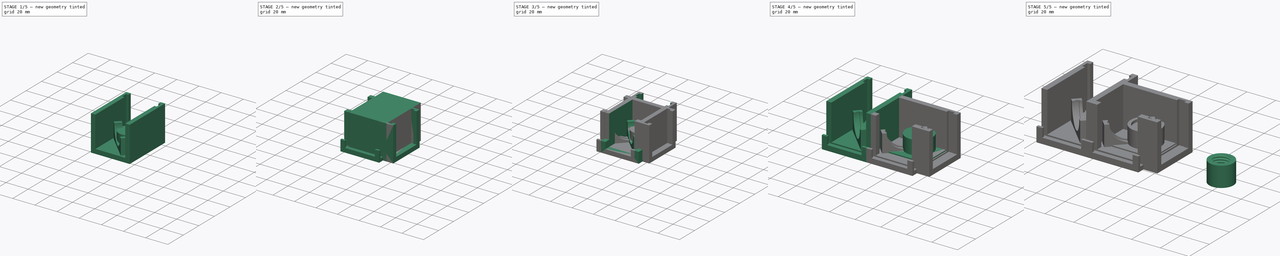
[diagram: build sequence overview — one tinted view per stage of 5, left to right]
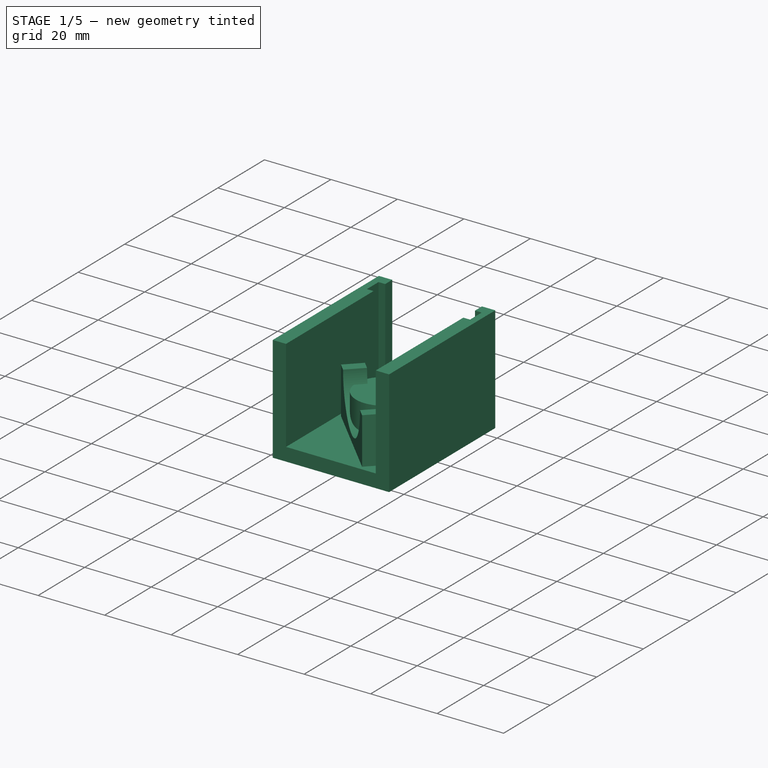
[diagram: stage 1 of 5 — iso view after this stage's code; geometry added in this stage tinted green]
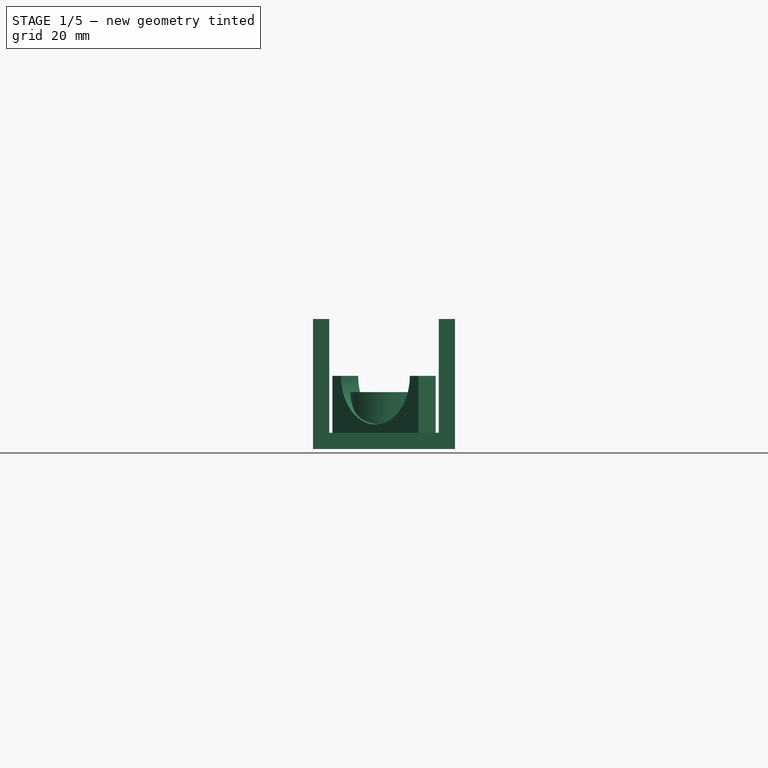
[diagram: stage 1 of 5 — front view after this stage's code; geometry added in this stage tinted green]
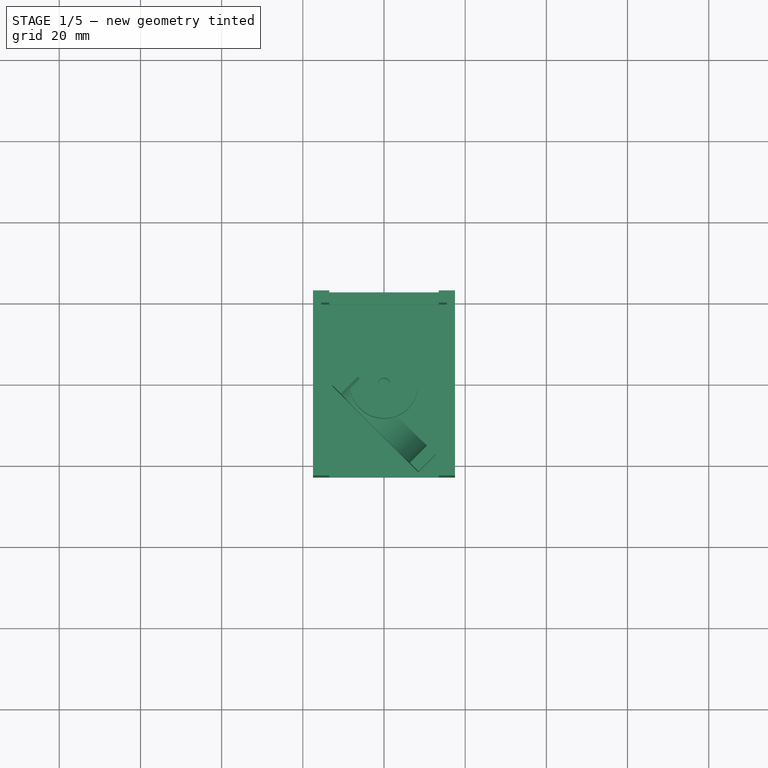
[diagram: stage 1 of 5 — top view after this stage's code; geometry added in this stage tinted green]
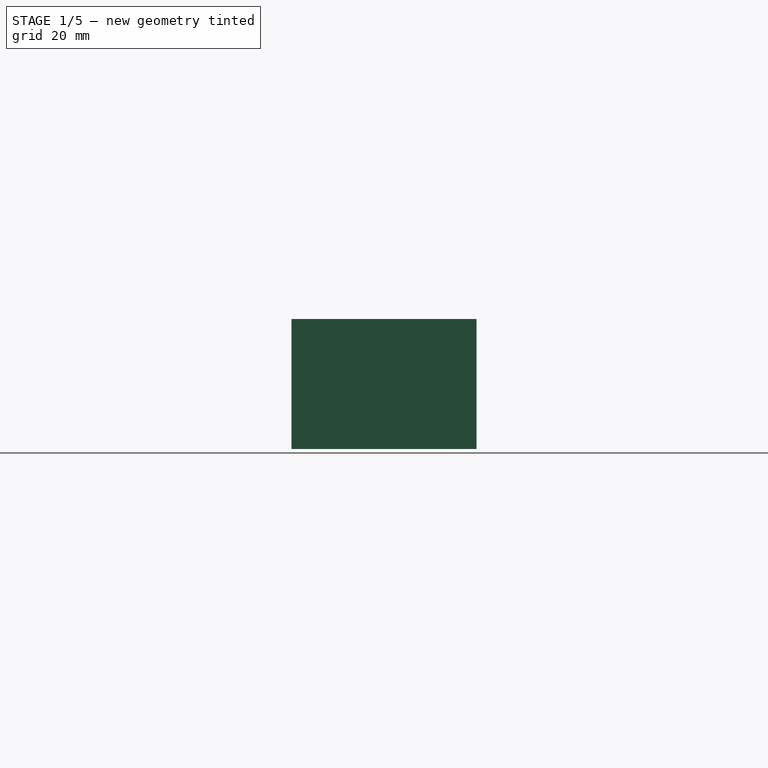
[diagram: stage 1 of 5 — right view after this stage's code; geometry added in this stage tinted green]
FCSTD DOCUMENT  (FreeCAD 0.20R29177 (Git))
Label: SunlightCollector+Dichroic01
License: All rights reserved
LicenseURL: http://en.wikipedia.org/wiki/All_rights_reserved
objects: Sketcher::SketchObject×21, PartDesign::Pocket×11, PartDesign::Pad×10, PartDesign::Body×5, Part::Cut×3, Part::Cylinder×2, Part::FeaturePython×1, PartDesign::Fillet×1, Part::MultiFuse×1
note: 77 computed .brp shape members not serialized (recipe doc carries the construction recipe); baked Part::Feature solids carry a one-line shape summary decoded from their .brp

FEATURE [Sketcher::SketchObject] Sketch022  label="BaseMain003"
  FullyConstrained = true
  MapMode = 5
  Support = -> [XY_Plane007]
  sketch-geometry (4):
    g0: LineSegment StartX=-17.5 StartY=22.8 StartZ=0 EndX=17.5 EndY=22.8 EndZ=0
    g1: LineSegment StartX=17.5 StartY=22.8 StartZ=0 EndX=17.5 EndY=-22.8 EndZ=0
    g2: LineSegment StartX=17.5 StartY=-22.8 StartZ=0 EndX=-17.5 EndY=-22.8 EndZ=0
    g3: LineSegment StartX=-17.5 StartY=-22.8 StartZ=0 EndX=-17.5 EndY=22.8 EndZ=0
  constraints (11):
    c: Coincident(g0,g1)
    c: Coincident(g1,g2)
    c: Coincident(g2,g3)
    c: Coincident(g3,g0)
    c: Horizontal(g0)
    c: Horizontal(g2)
    c: Vertical(g1)
    c: Vertical(g3)
    c: Symmetric(g0,g1,g-1)
    c: DistanceY(g3,g3) = 45.6
    c: DistanceX(g2,g2) = 35
FEATURE [PartDesign::Pad] Pad010  label="BaseMain002"
  Direction = (0,0,1)
  Length = 32
  Length2 = 100
  Profile = -> Sketch022
  Type = 0
FEATURE [Sketcher::SketchObject] Sketch023  label="BaseMainHole003"
  FullyConstrained = true
  MapMode = 5
  Placement = pos=(0,0,32) rot=(0,0,1;0rad)
  Support = -> [Pad010]
  sketch-geometry (4):
    g0: LineSegment StartX=-13.5 StartY=25 StartZ=0 EndX=13.5 EndY=25 EndZ=0
    g1: LineSegment StartX=13.5 StartY=25 StartZ=0 EndX=13.5 EndY=-25 EndZ=0
    g2: LineSegment StartX=13.5 StartY=-25 StartZ=0 EndX=-13.5 EndY=-25 EndZ=0
    g3: LineSegment StartX=-13.5 StartY=-25 StartZ=0 EndX=-13.5 EndY=25 EndZ=0
  constraints (11):
    c: Coincident(g0,g1)
    c: Coincident(g1,g2)
    c: Coincident(g2,g3)
    c: Coincident(g3,g0)
    c: Horizontal(g0)
    c: Horizontal(g2)
    c: Vertical(g1)
    c: Vertical(g3)
    c: Symmetric(g0,g1,g-1)
    c: DistanceX(g2,g2) = 27
    c: DistanceY(g1,g1) = 50
FEATURE [PartDesign::Pocket] Pocket008  label="BaseMainHole002"
  BaseFeature = -> Pad010
  Direction = (0,0,-1)
  Length = 28
  Length2 = 100
  Profile = -> Sketch023
  Type = 0
FEATURE [Sketcher::SketchObject] Sketch024  label="BaseSmallHoles003"
  ExternalGeometry = -> [Pocket008]
  FullyConstrained = true
  MapMode = 5
  Placement = pos=(0,0,32) rot=(0,0,1;0rad)
  Support = -> [Pocket008]
  sketch-geometry (4):
    g0: LineSegment StartX=-15.5 StartY=19.8 StartZ=0 EndX=15.5 EndY=19.8 EndZ=0
    g1: LineSegment StartX=15.5 StartY=19.8 StartZ=0 EndX=15.5 EndY=14.8 EndZ=0
    g2: LineSegment StartX=15.5 StartY=14.8 StartZ=0 EndX=-15.5 EndY=14.8 EndZ=0
    g3: LineSegment StartX=-15.5 StartY=14.8 StartZ=0 EndX=-15.5 EndY=19.8 EndZ=0
  constraints (12):
    c: Coincident(g0,g1)
    c: Coincident(g1,g2)
    c: Coincident(g2,g3)
    c: Coincident(g3,g0)
    c: Horizontal(g0)
    c: Horizontal(g2)
    c: Vertical(g1)
    c: Vertical(g3)
    c: DistanceX(g0,g0) = 31
    c: DistanceX(g-1,g1) = 15.5
    c: DistanceY(g3,g3) = 5
    c: DistanceY(g0,g-3) = 3
FEATURE [PartDesign::Pocket] Pocket009  label="BaseSmallHoles002"
  BaseFeature = -> Pocket008
  Direction = (0,0,-1)
  Length = 29
  Length2 = 100
  Profile = -> Sketch024
  Type = 0
FEATURE [Sketcher::SketchObject] Sketch021  label="DichroicHolder003"
  FullyConstrained = true
  MapMode = 5
  Placement = pos=(0,0,4) rot=(0,0,1;0rad)
  Support = -> [Pocket009]
  expr: Constraints[10] = 25.46 / 2
  sketch-geometry (4):
    g0: LineSegment StartX=-12.73 StartY=-0.312641 StartZ=0 EndX=8.4832 EndY=-21.5258 EndZ=0
    g1: LineSegment StartX=8.4832 StartY=-21.5258 StartZ=0 EndX=12.7258 EndY=-17.2832 EndZ=0
    g2: LineSegment StartX=12.7258 StartY=-17.2832 StartZ=0 EndX=-8.48736 EndY=3.93 EndZ=0
    g3: LineSegment StartX=-8.48736 StartY=3.93 StartZ=0 EndX=-12.73 EndY=-0.312641 EndZ=0
  constraints (12):
    c: Coincident(g0,g1)
    c: Coincident(g1,g2)
    c: Coincident(g2,g3)
    c: Coincident(g3,g0)
    c: Equal(g0,g2)
    c: Equal(g1,g3)
    c: Angle(g2) = 2.35619
    c: Distance(g1) = 6
    c: Distance(g0) = 30
    c: Angle(g1) = 0.785398
    c: DistanceX(g0,g-1) = 12.73
    c: DistanceY(g-1,g2) = 3.93
FEATURE [PartDesign::Pad] Pad009  label="DichroicHolder002"
  BaseFeature = -> Pocket009
  Direction = (0,0,1)
  Length = 14
  Length2 = 14
  Profile = -> Sketch021
  ReferenceAxis = -> Sketch021 [N_Axis]
  Type = 0
FEATURE [Sketcher::SketchObject] Sketch025  label="DichroicHole003"
  ExternalGeometry = -> [Pad009]
  FullyConstrained = true
  MapMode = 5
  Placement = pos=(-6.52132,-6.52132,0) rot=(0.862856,-0.357407,-0.357407;1.71777rad)
  Support = -> [Pad009]
  sketch-geometry (2):
    g0: ArcOfCircle CenterX=6.2196 CenterY=18 CenterZ=0 NormalX=0 NormalY=0 NormalZ=1 AngleXU=0 Radius=12 StartAngle=3.14159 EndAngle=6.28319
    g1: LineSegment StartX=-5.7804 StartY=18 StartZ=0 EndX=18.2196 EndY=18 EndZ=0
  constraints (7):
    c: PointOnObject(g0,g-3)
    c: PointOnObject(g0,g-3)
    c: PointOnObject(g0,g-3)
    c: DistanceX(g0,g-3) = 15
    c: Radius(g0) = 12
    c: Coincident(g1,g0)
    c: Coincident(g1,g0)
FEATURE [PartDesign::Pocket] Pocket007  label="DichroicHole002"
  BaseFeature = -> Pad009
  Direction = (0.707107,0.707107,0)
  Length = 5
  Length2 = 5
  Profile = -> Sketch025
  ReferenceAxis = -> Sketch025 [N_Axis]
  Type = 2
FEATURE [Sketcher::SketchObject] Sketch031
  FullyConstrained = true
  MapMode = 5
  Support = -> [XY_Plane]
  sketch-geometry (2):
    g0: Circle CenterX=0 CenterY=0 CenterZ=0 NormalX=0 NormalY=0 NormalZ=1 AngleXU=0 Radius=8.4
    g1: Circle CenterX=0 CenterY=0 CenterZ=0 NormalX=0 NormalY=0 NormalZ=1 AngleXU=0 Radius=1.55
  constraints (4):
    c: Coincident(g0,g-1)
    c: Radius(g0) = 8.4
    c: Coincident(g1,g0)
    c: Diameter(g1) = 3.1
FEATURE [PartDesign::Pad] Pad013
  Direction = (0,0,1)
  Length = 14
  Length2 = 10
  Profile = -> Sketch031
  ReferenceAxis = -> Sketch031 [N_Axis]
  Type = 0
FEATURE [PartDesign::Body] Body  label="FiberHolder"
  Group = -> [Sketch031,Pad013]
  Origin = -> Origin
  Placement = pos=(81,-11,0) rot=(0,0,1;0rad)
  Tip = -> Pad013
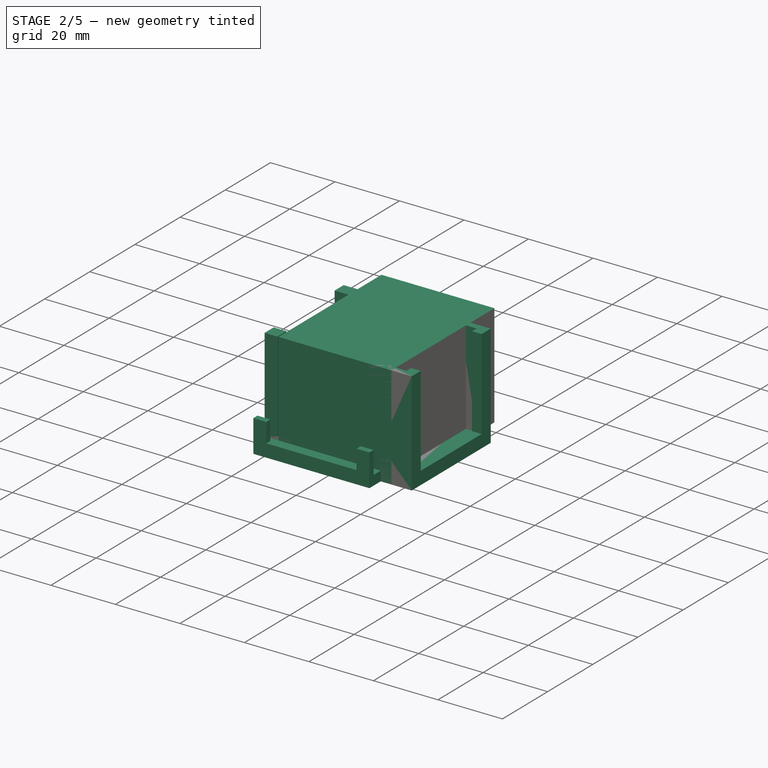
[diagram: stage 2 of 5 — iso view after this stage's code; geometry added in this stage tinted green]
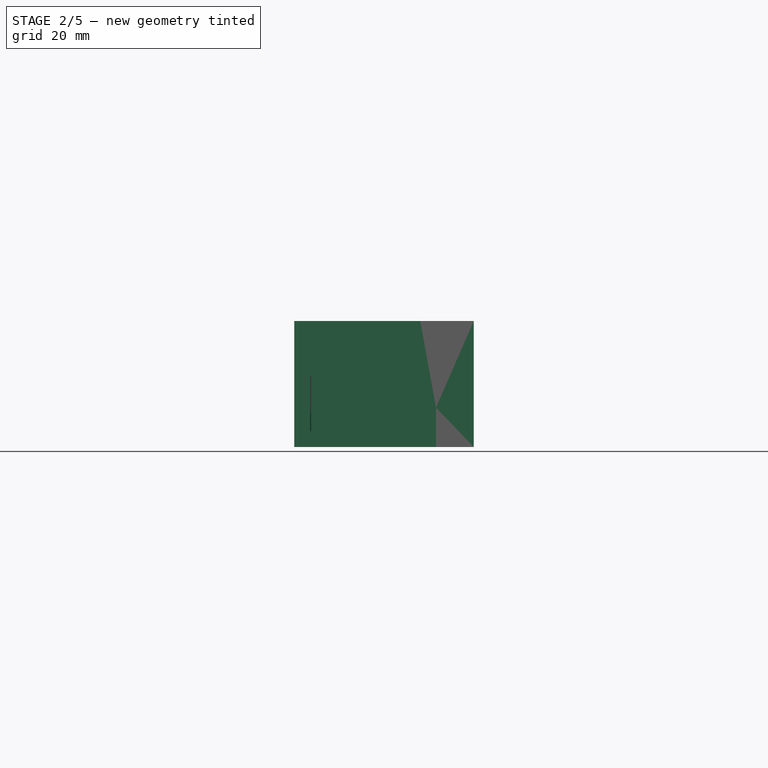
[diagram: stage 2 of 5 — front view after this stage's code; geometry added in this stage tinted green]
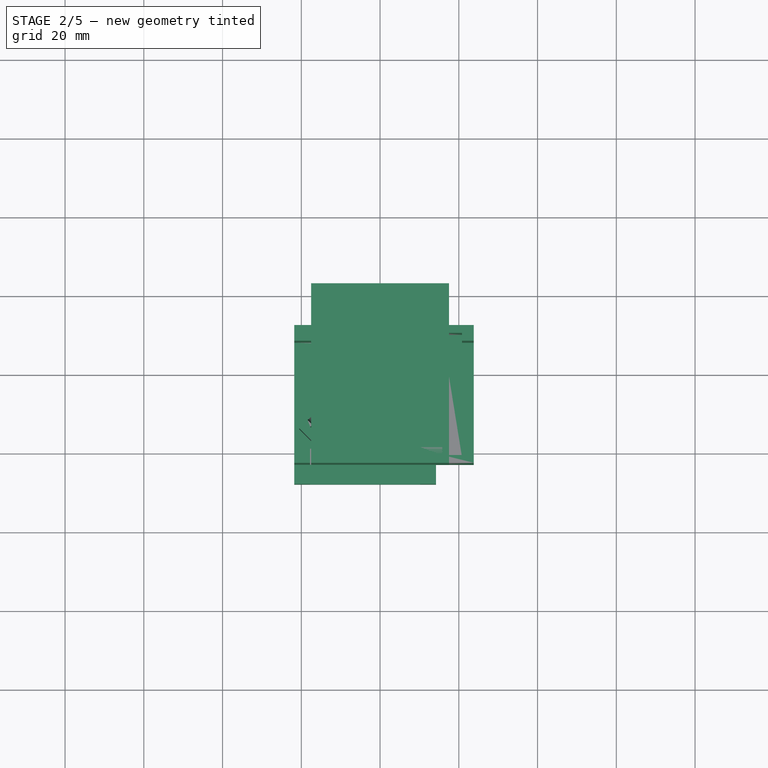
[diagram: stage 2 of 5 — top view after this stage's code; geometry added in this stage tinted green]
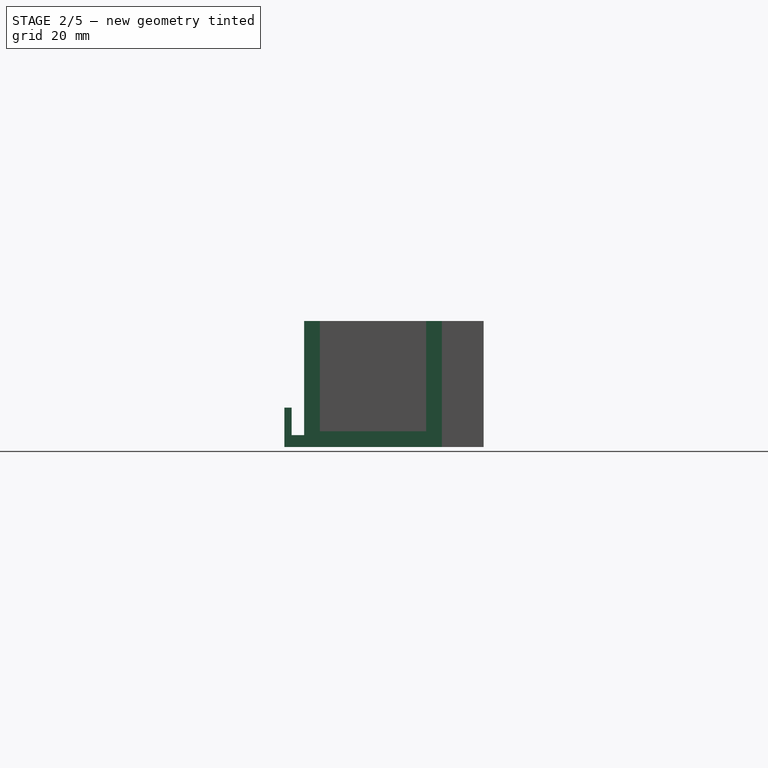
[diagram: stage 2 of 5 — right view after this stage's code; geometry added in this stage tinted green]
FEATURE [PartDesign::Body] Body003  label="FibreHolder"
  Group = -> [Sketch006,Pad003,Sketch007,Pad004,Sketch008,Pocket003,Sketch011,Pocket004,Fillet002]
  Origin = -> Origin003
  Placement = pos=(60,18,0) rot=(0,0,1;0rad)
  Tip = -> Fillet002
FEATURE [Sketcher::SketchObject] Sketch017  label="BaseMain001"
  FullyConstrained = true
  MapMode = 5
  Support = -> [XY_Plane006]
  sketch-geometry (4):
    g0: LineSegment StartX=-17.5 StartY=22.8 StartZ=0 EndX=17.5 EndY=22.8 EndZ=0
    g1: LineSegment StartX=17.5 StartY=22.8 StartZ=0 EndX=17.5 EndY=-22.8 EndZ=0
    g2: LineSegment StartX=17.5 StartY=-22.8 StartZ=0 EndX=-17.5 EndY=-22.8 EndZ=0
    g3: LineSegment StartX=-17.5 StartY=-22.8 StartZ=0 EndX=-17.5 EndY=22.8 EndZ=0
  constraints (11):
    c: Coincident(g0,g1)
    c: Coincident(g1,g2)
    c: Coincident(g2,g3)
    c: Coincident(g3,g0)
    c: Horizontal(g0)
    c: Horizontal(g2)
    c: Vertical(g1)
    c: Vertical(g3)
    c: Symmetric(g0,g1,g-1)
    c: DistanceY(g3,g3) = 45.6
    c: DistanceX(g2,g2) = 35
FEATURE [PartDesign::Pad] Pad008  label="BaseMain"
  Direction = (0,0,1)
  Length = 32
  Length2 = 100
  Profile = -> Sketch017
  Type = 0
FEATURE [Part::Cylinder] Cylinder001  label="DichroicFilter02"
  Angle = 360
  AttacherType = Attacher::AttachEngine3D
  FirstAngle = 0
  Height = 2.3
  Placement = pos=(-38.25,-74,18) rot=(0.860516,-0.360216,-0.360216;1.71775rad)
  Radius = 12.8
  SecondAngle = 0
FEATURE [PartDesign::Body] Body006  label="BaseTemp01"
  Group = -> [Sketch017,Pad008,Sketch018,Pocket005,Sketch019,Pocket006,Sketch,Pad,Sketch020,Pocket,Sketch026,Pad011,Sketch027,Pocket010]
  Origin = -> Origin006
  Placement = pos=(-39,0,0) rot=(0,0,1;0rad)
  Tip = -> Pocket010
FEATURE [Sketcher::SketchObject] Sketch028  label="LCIllumination001"
  ExternalGeometry = -> [Pocket007]
  FullyConstrained = true
  MapMode = 5
  Placement = pos=(0,0,32) rot=(0,0,1;0rad)
  Support = -> [Pocket007]
  sketch-geometry (4):
    g0: LineSegment StartX=17.5 StartY=-18.8 StartZ=0 EndX=13.5 EndY=-18.8 EndZ=0
    g1: LineSegment StartX=13.5 StartY=-18.8 StartZ=0 EndX=13.5 EndY=9.2 EndZ=0
    g2: LineSegment StartX=13.5 StartY=9.2 StartZ=0 EndX=17.5 EndY=9.2 EndZ=0
    g3: LineSegment StartX=17.5 StartY=9.2 StartZ=0 EndX=17.5 EndY=-18.8 EndZ=0
  constraints (12):
    c: Coincident(g0,g1)
    c: Coincident(g1,g2)
    c: Coincident(g2,g3)
    c: Coincident(g3,g0)
    c: Horizontal(g0)
    c: Horizontal(g2)
    c: Vertical(g1)
    c: Vertical(g3)
    c: PointOnObject(g0,g-3)
    c: DistanceX(g2,g2) = 4
    c: DistanceY(g1,g1) = 28
    c: DistanceY(g-3,g0) = 4
FEATURE [PartDesign::Pocket] Pocket011  label="LCIllumination"
  BaseFeature = -> Pocket007
  Direction = (0,0,-1)
  Length = 28
  Length2 = 5
  Profile = -> Sketch028
  ReferenceAxis = -> Sketch028 [N_Axis]
  Type = 0
FEATURE [Sketcher::SketchObject] Sketch029  label="LCExtension001"
  ExternalGeometry = -> [Pocket011]
  FullyConstrained = true
  MapMode = 5
  Placement = pos=(17.5,0,0) rot=(0.57735,0.57735,0.57735;2.0944rad)
  Support = -> [Pocket011]
  sketch-geometry (8):
    g0: LineSegment StartX=-22.8 StartY=0 StartZ=0 EndX=-22.8 EndY=10 EndZ=0
    g1: LineSegment StartX=-22.8 StartY=10 StartZ=0 EndX=-18.8 EndY=10 EndZ=0
    g2: LineSegment StartX=-18.8 StartY=10 StartZ=0 EndX=-18.8 EndY=4 EndZ=0
    g3: LineSegment StartX=-18.8 StartY=4 StartZ=0 EndX=9.2 EndY=4 EndZ=0
    g4: LineSegment StartX=9.2 StartY=4 StartZ=0 EndX=9.2 EndY=10 EndZ=0
    g5: LineSegment StartX=9.2 StartY=10 StartZ=0 EndX=13.2 EndY=10 EndZ=0
    g6: LineSegment StartX=13.2 StartY=10 StartZ=0 EndX=13.2 EndY=0 EndZ=0
    g7: LineSegment StartX=13.2 StartY=0 StartZ=0 EndX=-22.8 EndY=0 EndZ=0
  constraints (21):
    c: Coincident(g-4,g0)
    c: Vertical(g0)
    c: Coincident(g0,g1)
    c: Horizontal(g1)
    c: Coincident(g1,g2)
    c: Coincident(g2,g-3)
    c: Vertical(g2)
    c: Coincident(g2,g3)
    c: Coincident(g3,g-3)
    c: Coincident(g3,g4)
    c: Coincident(g4,g5)
    c: Horizontal(g5)
    c: Coincident(g5,g6)
    c: PointOnObject(g6,g-4)
    c: Coincident(g6,g7)
    c: Coincident(g7,g0)
    c: Vertical(g4)
    c: Vertical(g6)
    c: Equal(g1,g5)
    c: Equal(g6,g0)
    c: DistanceY(g6,g6) = 10
FEATURE [PartDesign::Pad] Pad012  label="LCExtension"
  BaseFeature = -> Pocket011
  Direction = (1,0,0)
  Length = 5
  Length2 = 10
  Profile = -> Sketch029
  ReferenceAxis = -> Sketch029 [N_Axis]
  Type = 0
FEATURE [Sketcher::SketchObject] Sketch030  label="LCHole003"
  ExternalGeometry = -> [Pad012]
  FullyConstrained = true
  MapMode = 5
  Placement = pos=(0,0,10) rot=(0,0,1;0rad)
  Support = -> [Pad012]
  sketch-geometry (4):
    g0: LineSegment StartX=17.5 StartY=-22.8 StartZ=0 EndX=20.65 EndY=-22.8 EndZ=0
    g1: LineSegment StartX=20.65 StartY=-22.8 StartZ=0 EndX=20.65 EndY=13.2 EndZ=0
    g2: LineSegment StartX=20.65 StartY=13.2 StartZ=0 EndX=17.5 EndY=13.2 EndZ=0
    g3: LineSegment StartX=17.5 StartY=13.2 StartZ=0 EndX=17.5 EndY=-22.8 EndZ=0
  constraints (11):
    c: Coincident(g0,g1)
    c: Coincident(g1,g2)
    c: Coincident(g2,g3)
    c: Coincident(g3,g0)
    c: Horizontal(g0)
    c: Horizontal(g2)
    c: Vertical(g1)
    c: Vertical(g3)
    c: Coincident(g0,g-3)
    c: DistanceX(g2,g2) = 3.15
    c: DistanceY(g1,g1) = 36
FEATURE [PartDesign::Pocket] Pocket012  label="LCHole002"
  BaseFeature = -> Pad012
  Direction = (0,0,-1)
  Length = 7
  Length2 = 5
  Profile = -> Sketch030
  ReferenceAxis = -> Sketch030 [N_Axis]
  Type = 0
FEATURE [Part::Cut] Cut002  label="Base02"
  Base = -> Body007
  Placement = pos=(67,-44.3,0) rot=(0,0,-1;1.5708rad)
  Tool = -> Cylinder001
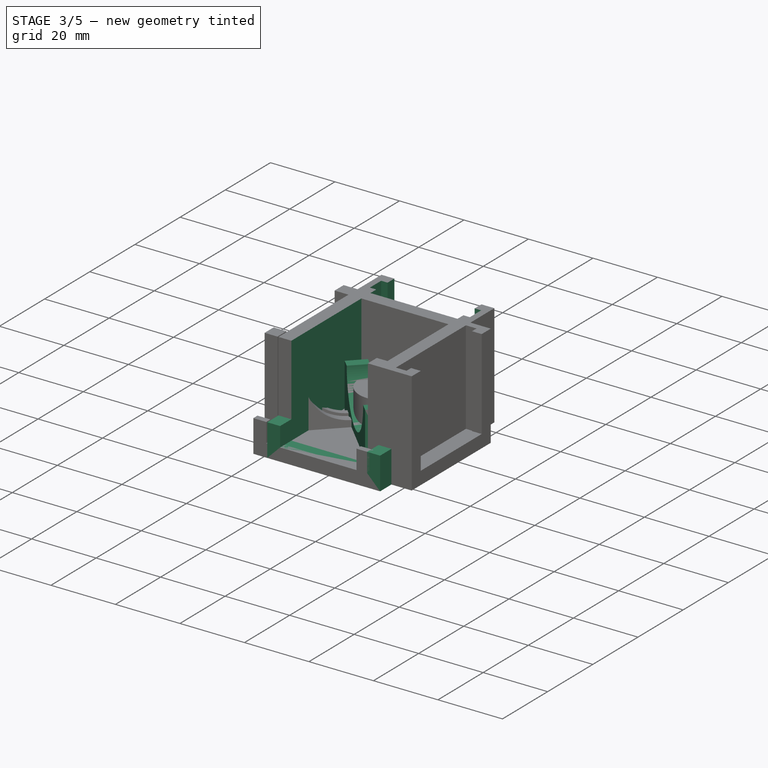
[diagram: stage 3 of 5 — iso view after this stage's code; geometry added in this stage tinted green]
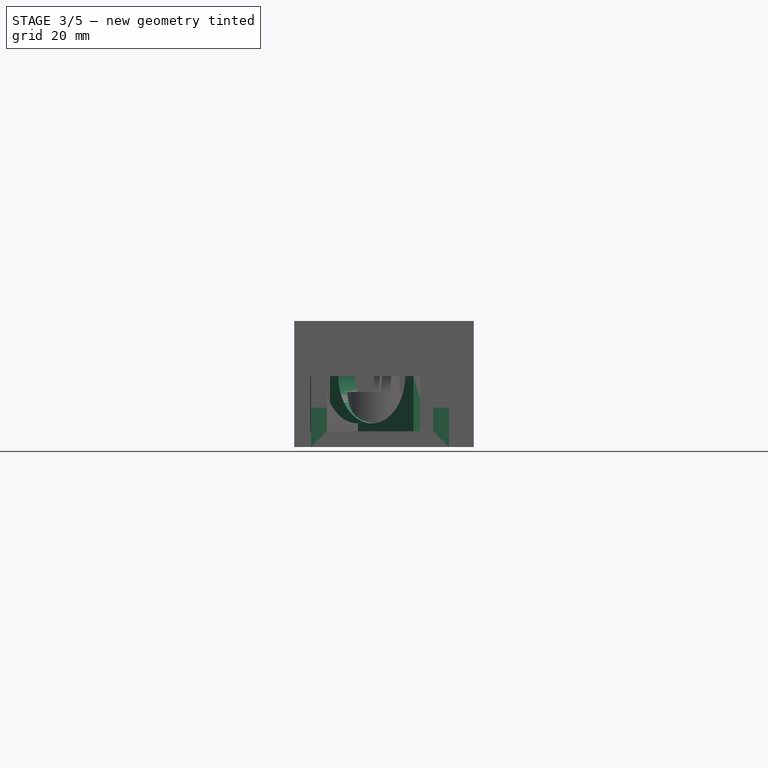
[diagram: stage 3 of 5 — front view after this stage's code; geometry added in this stage tinted green]
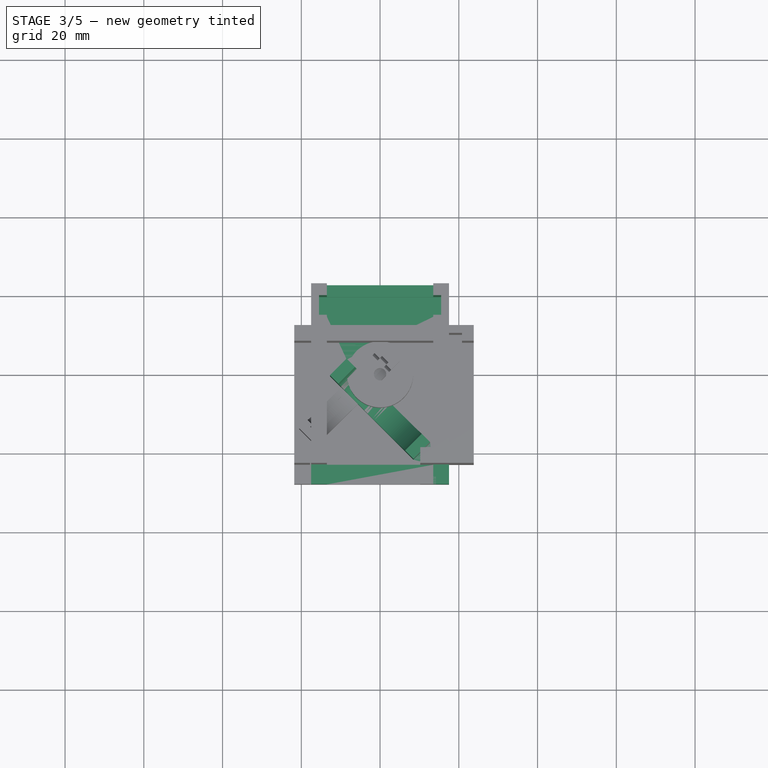
[diagram: stage 3 of 5 — top view after this stage's code; geometry added in this stage tinted green]
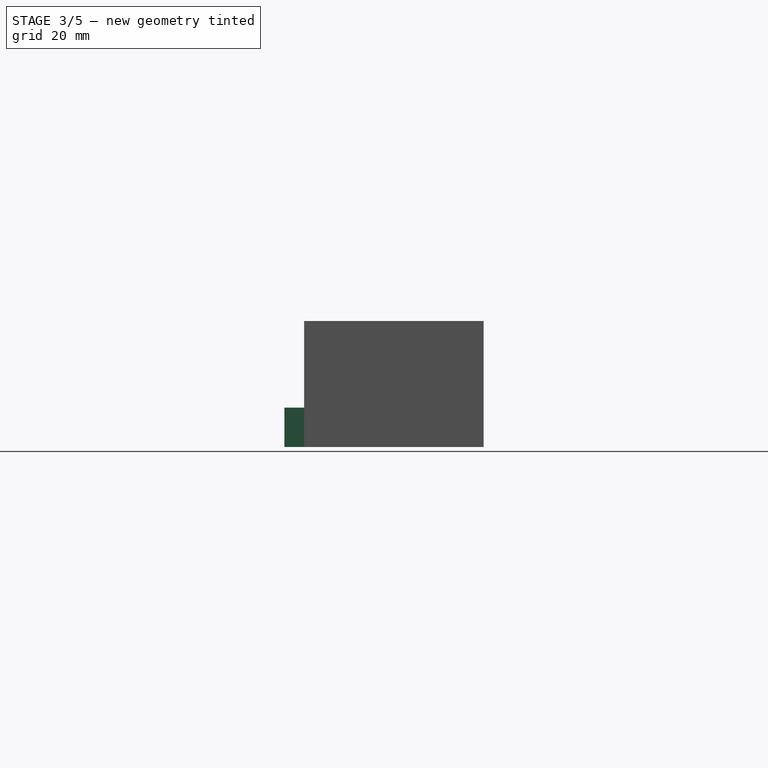
[diagram: stage 3 of 5 — right view after this stage's code; geometry added in this stage tinted green]
FEATURE [Sketcher::SketchObject] Sketch018  label="BaseMainHole001"
  FullyConstrained = true
  MapMode = 5
  Placement = pos=(0,0,32) rot=(0,0,1;0rad)
  Support = -> [Pad008]
  sketch-geometry (4):
    g0: LineSegment StartX=-13.5 StartY=25 StartZ=0 EndX=13.5 EndY=25 EndZ=0
    g1: LineSegment StartX=13.5 StartY=25 StartZ=0 EndX=13.5 EndY=-25 EndZ=0
    g2: LineSegment StartX=13.5 StartY=-25 StartZ=0 EndX=-13.5 EndY=-25 EndZ=0
    g3: LineSegment StartX=-13.5 StartY=-25 StartZ=0 EndX=-13.5 EndY=25 EndZ=0
  constraints (11):
    c: Coincident(g0,g1)
    c: Coincident(g1,g2)
    c: Coincident(g2,g3)
    c: Coincident(g3,g0)
    c: Horizontal(g0)
    c: Horizontal(g2)
    c: Vertical(g1)
    c: Vertical(g3)
    c: Symmetric(g0,g1,g-1)
    c: DistanceX(g2,g2) = 27
    c: DistanceY(g1,g1) = 50
FEATURE [PartDesign::Pocket] Pocket005  label="BaseMainHole"
  BaseFeature = -> Pad008
  Direction = (0,0,-1)
  Length = 28
  Length2 = 100
  Profile = -> Sketch018
  Type = 0
FEATURE [PartDesign::Pocket] Pocket006  label="BaseSmallHoles"
  BaseFeature = -> Pocket005
  Direction = (0,0,-1)
  Length = 29
  Length2 = 100
  Profile = -> Sketch019
  Type = 0
FEATURE [Sketcher::SketchObject] Sketch  label="DichroicHolder001"
  FullyConstrained = true
  MapMode = 5
  Placement = pos=(0,0,4) rot=(0,0,1;0rad)
  Support = -> [Pocket006]
  expr: Constraints[10] = 25.46 / 2
  sketch-geometry (4):
    g0: LineSegment StartX=-12.73 StartY=-0.312641 StartZ=0 EndX=8.4832 EndY=-21.5258 EndZ=0
    g1: LineSegment StartX=8.4832 StartY=-21.5258 StartZ=0 EndX=12.7258 EndY=-17.2832 EndZ=0
    g2: LineSegment StartX=12.7258 StartY=-17.2832 StartZ=0 EndX=-8.48736 EndY=3.93 EndZ=0
    g3: LineSegment StartX=-8.48736 StartY=3.93 StartZ=0 EndX=-12.73 EndY=-0.312641 EndZ=0
  constraints (12):
    c: Coincident(g0,g1)
    c: Coincident(g1,g2)
    c: Coincident(g2,g3)
    c: Coincident(g3,g0)
    c: Equal(g0,g2)
    c: Equal(g1,g3)
    c: Angle(g2) = 2.35619
    c: Distance(g1) = 6
    c: Distance(g0) = 30
    c: Angle(g1) = 0.785398
    c: DistanceX(g0,g-1) = 12.73
    c: DistanceY(g-1,g2) = 3.93
FEATURE [PartDesign::Pad] Pad  label="DichroicHolder"
  BaseFeature = -> Pocket006
  Direction = (0,0,1)
  Length = 14
  Length2 = 14
  Profile = -> Sketch
  ReferenceAxis = -> Sketch [N_Axis]
  Type = 0
FEATURE [Sketcher::SketchObject] Sketch020  label="DichroicHole001"
  ExternalGeometry = -> [Pad]
  FullyConstrained = true
  MapMode = 5
  Placement = pos=(-6.52132,-6.52132,0) rot=(0.862856,-0.357407,-0.357407;1.71777rad)
  Support = -> [Pad]
  sketch-geometry (2):
    g0: ArcOfCircle CenterX=6.2196 CenterY=18 CenterZ=0 NormalX=0 NormalY=0 NormalZ=1 AngleXU=0 Radius=12 StartAngle=3.14159 EndAngle=6.28319
    g1: LineSegment StartX=-5.7804 StartY=18 StartZ=0 EndX=18.2196 EndY=18 EndZ=0
  constraints (7):
    c: PointOnObject(g0,g-3)
    c: PointOnObject(g0,g-3)
    c: PointOnObject(g0,g-3)
    c: DistanceX(g0,g-3) = 15
    c: Radius(g0) = 12
    c: Coincident(g1,g0)
    c: Coincident(g1,g0)
FEATURE [PartDesign::Pocket] Pocket  label="DichroicHole"
  BaseFeature = -> Pad
  Direction = (0.707107,0.707107,0)
  Length = 5
  Length2 = 5
  Profile = -> Sketch020
  ReferenceAxis = -> Sketch020 [N_Axis]
  Type = 2
FEATURE [Sketcher::SketchObject] Sketch026  label="LCextension001"
  ExternalGeometry = -> [Pocket]
  FullyConstrained = true
  MapMode = 5
  Placement = pos=(0,-22.8,0) rot=(1,0,0;1.5708rad)
  Support = -> [Pocket]
  sketch-geometry (8):
    g0: LineSegment StartX=-17.5 StartY=0 StartZ=0 EndX=17.5 EndY=0 EndZ=0
    g1: LineSegment StartX=17.5 StartY=0 StartZ=0 EndX=17.5 EndY=10 EndZ=0
    g2: LineSegment StartX=17.5 StartY=10 StartZ=0 EndX=13.5 EndY=10 EndZ=0
    g3: LineSegment StartX=13.5 StartY=10 StartZ=0 EndX=13.5 EndY=4 EndZ=0
    g4: LineSegment StartX=13.5 StartY=4 StartZ=0 EndX=-13.5 EndY=4 EndZ=0
    g5: LineSegment StartX=-13.5 StartY=4 StartZ=0 EndX=-13.5 EndY=10 EndZ=0
    g6: LineSegment StartX=-13.5 StartY=10 StartZ=0 EndX=-17.5 EndY=10 EndZ=0
    g7: LineSegment StartX=-17.5 StartY=10 StartZ=0 EndX=-17.5 EndY=0 EndZ=0
  constraints (20):
    c: Coincident(g-4,g0)
    c: Coincident(g0,g-4)
    c: Coincident(g0,g1)
    c: Vertical(g1)
    c: Coincident(g1,g2)
    c: Horizontal(g2)
    c: Coincident(g2,g3)
    c: Coincident(g3,g-3)
    c: Vertical(g3)
    c: Coincident(g3,g4)
    c: Coincident(g4,g-3)
    c: Coincident(g4,g5)
    c: Vertical(g5)
    c: Coincident(g5,g6)
    c: Coincident(g6,g7)
    c: Coincident(g7,g0)
    c: Vertical(g7)
    c: Horizontal(g6)
    c: Equal(g7,g1)
    c: DistanceY(g7,g7) = 10
FEATURE [PartDesign::Pad] Pad011  label="LCextension"
  BaseFeature = -> Pocket
  Direction = (0,-1,2e-16)
  Length = 5
  Length2 = 10
  Profile = -> Sketch026
  ReferenceAxis = -> Sketch026 [N_Axis]
  Type = 0
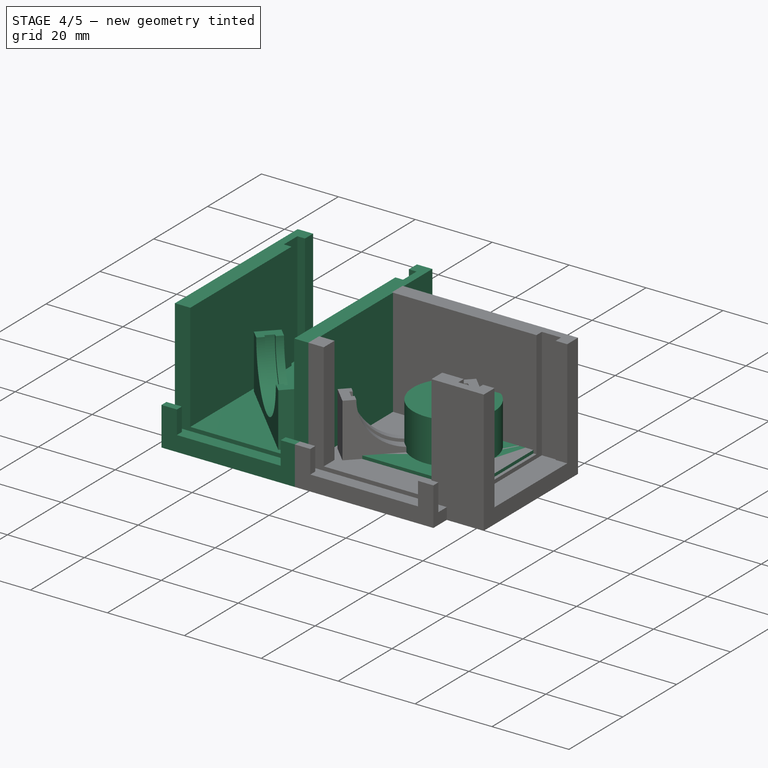
[diagram: stage 4 of 5 — iso view after this stage's code; geometry added in this stage tinted green]
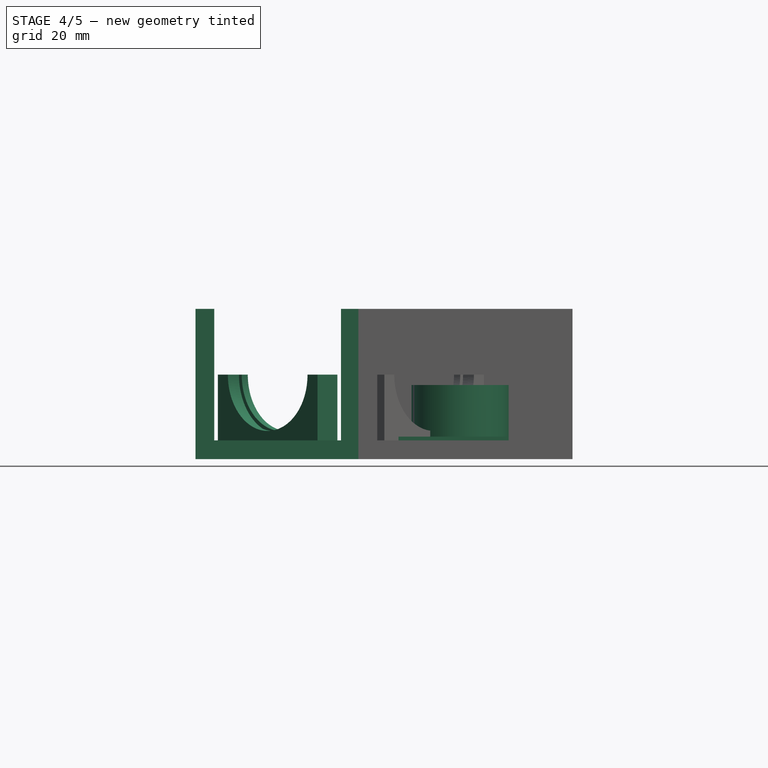
[diagram: stage 4 of 5 — front view after this stage's code; geometry added in this stage tinted green]
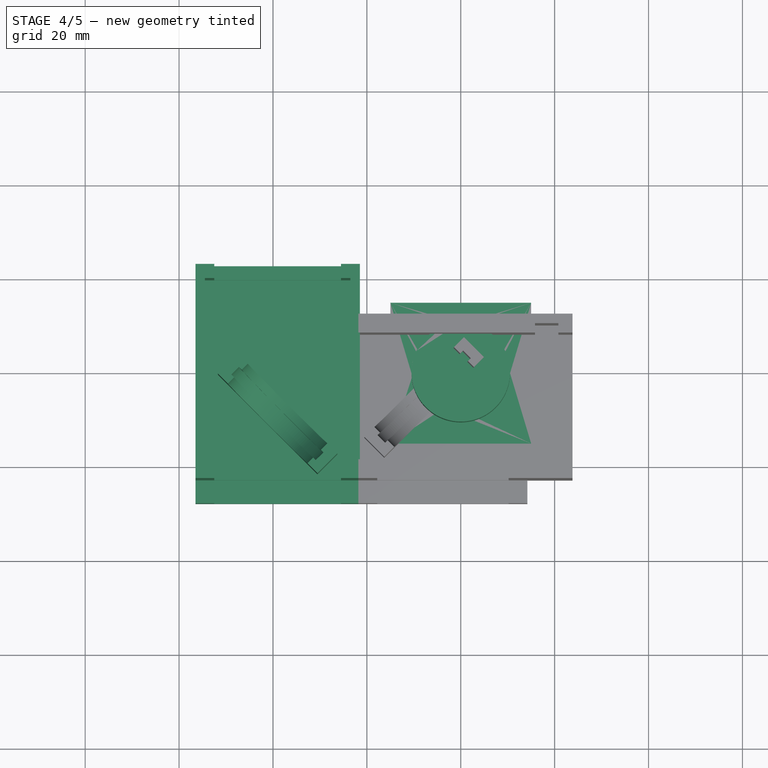
[diagram: stage 4 of 5 — top view after this stage's code; geometry added in this stage tinted green]
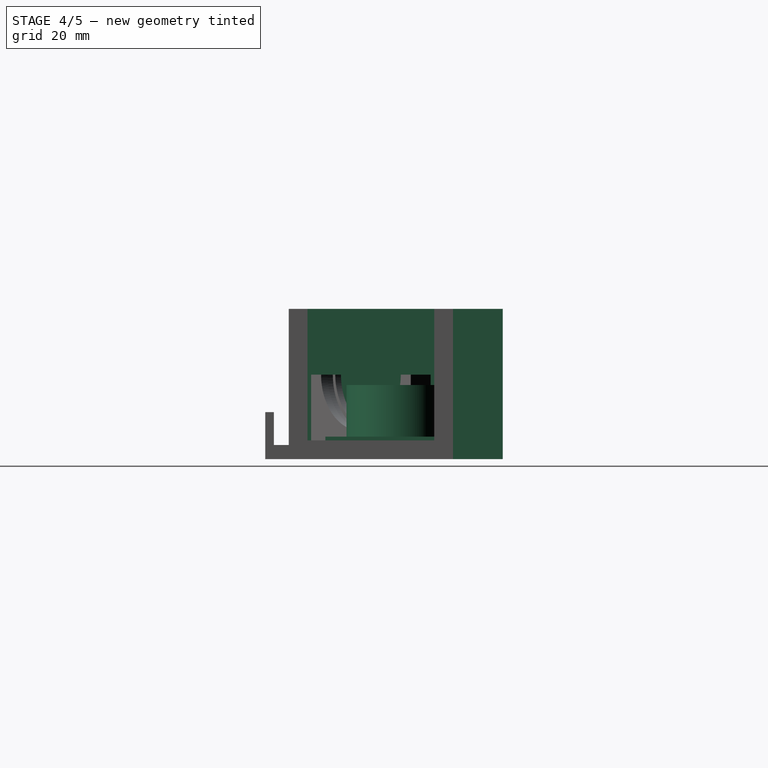
[diagram: stage 4 of 5 — right view after this stage's code; geometry added in this stage tinted green]
FEATURE [Sketcher::SketchObject] Sketch006  label="FibreHolderMain001"
  FullyConstrained = true
  MapMode = 5
  Support = -> [XY_Plane003]
  sketch-geometry (4):
    g0: LineSegment StartX=-15 StartY=15 StartZ=0 EndX=15 EndY=15 EndZ=0
    g1: LineSegment StartX=15 StartY=15 StartZ=0 EndX=15 EndY=-15 EndZ=0
    g2: LineSegment StartX=15 StartY=-15 StartZ=0 EndX=-15 EndY=-15 EndZ=0
    g3: LineSegment StartX=-15 StartY=-15 StartZ=0 EndX=-15 EndY=15 EndZ=0
  constraints (11):
    c: Coincident(g0,g1)
    c: Coincident(g1,g2)
    c: Coincident(g2,g3)
    c: Coincident(g3,g0)
    c: Horizontal(g0)
    c: Horizontal(g2)
    c: Vertical(g1)
    c: Vertical(g3)
    c: DistanceX(g0,g0) = 30
    c: DistanceY(g1,g1) = 30
    c: Symmetric(g1,g0,g-1)
FEATURE [PartDesign::Pad] Pad003  label="FibreHolderMain"
  Direction = (1,1,1)
  Length = 4.8
  Length2 = 100
  Profile = -> Sketch006
  Type = 0
FEATURE [Sketcher::SketchObject] Sketch007  label="FibreFixer001"
  FullyConstrained = true
  MapMode = 5
  Placement = pos=(0,0,4.8) rot=(0,0,1;0rad)
  Support = -> [Pad003]
  sketch-geometry (1):
    g0: Circle CenterX=0 CenterY=0 CenterZ=0 NormalX=0 NormalY=0 NormalZ=1 AngleXU=0 Radius=10.5
  constraints (2):
    c: Radius(g0) = 10.5
    c: Coincident(g0,g-1)
FEATURE [PartDesign::Pad] Pad004  label="FibreFixers"
  BaseFeature = -> Pad003
  Direction = (1,1,1)
  Length = 11
  Length2 = 100
  Profile = -> Sketch007
  Type = 0
FEATURE [Sketcher::SketchObject] Sketch019  label="BaseSmallHoles001"
  ExternalGeometry = -> [Pocket005]
  FullyConstrained = true
  MapMode = 5
  Placement = pos=(0,0,32) rot=(0,0,1;0rad)
  Support = -> [Pocket005]
  sketch-geometry (4):
    g0: LineSegment StartX=-15.5 StartY=19.8 StartZ=0 EndX=15.5 EndY=19.8 EndZ=0
    g1: LineSegment StartX=15.5 StartY=19.8 StartZ=0 EndX=15.5 EndY=14.8 EndZ=0
    g2: LineSegment StartX=15.5 StartY=14.8 StartZ=0 EndX=-15.5 EndY=14.8 EndZ=0
    g3: LineSegment StartX=-15.5 StartY=14.8 StartZ=0 EndX=-15.5 EndY=19.8 EndZ=0
  constraints (12):
    c: Coincident(g0,g1)
    c: Coincident(g1,g2)
    c: Coincident(g2,g3)
    c: Coincident(g3,g0)
    c: Horizontal(g0)
    c: Horizontal(g2)
    c: Vertical(g1)
    c: Vertical(g3)
    c: DistanceX(g0,g0) = 31
    c: DistanceX(g-1,g1) = 15.5
    c: DistanceY(g3,g3) = 5
    c: DistanceY(g0,g-3) = 3
FEATURE [Part::Cylinder] Cylinder  label="DichroicFilter01"
  Angle = 360
  AttacherType = Attacher::AttachEngine3D
  FirstAngle = 0
  Height = 2.3
  Placement = pos=(-38.25,-8,18) rot=(0.860516,-0.360216,-0.360216;1.71775rad)
  Radius = 12.8
  SecondAngle = 0
FEATURE [Sketcher::SketchObject] Sketch027  label="LCHole001"
  ExternalGeometry = -> [Pad011]
  FullyConstrained = true
  MapMode = 5
  Placement = pos=(0,2.2e-15,10) rot=(0,0,1;0rad)
  Support = -> [Pad011]
  sketch-geometry (4):
    g0: LineSegment StartX=-17.5 StartY=-22.8 StartZ=0 EndX=17.5 EndY=-22.8 EndZ=0
    g1: LineSegment StartX=17.5 StartY=-22.8 StartZ=0 EndX=17.5 EndY=-25.95 EndZ=0
    g2: LineSegment StartX=17.5 StartY=-25.95 StartZ=0 EndX=-17.5 EndY=-25.95 EndZ=0
    g3: LineSegment StartX=-17.5 StartY=-25.95 StartZ=0 EndX=-17.5 EndY=-22.8 EndZ=0
  constraints (11):
    c: Coincident(g0,g1)
    c: Coincident(g1,g2)
    c: Coincident(g2,g3)
    c: Coincident(g3,g0)
    c: Horizontal(g0)
    c: Horizontal(g2)
    c: Vertical(g1)
    c: Vertical(g3)
    c: Coincident(g0,g-3)
    c: DistanceY(g3,g3) = 3.15
    c: DistanceX(g2,g2) = 35
FEATURE [PartDesign::Pocket] Pocket010  label="LCHole"
  BaseFeature = -> Pad011
  Direction = (0,-2e-16,-1)
  Length = 7
  Length2 = 5
  Profile = -> Sketch027
  ReferenceAxis = -> Sketch027 [N_Axis]
  Type = 0
FEATURE [PartDesign::Body] Body007  label="BaseTemp02"
  Group = -> [Sketch022,Pad010,Sketch023,Pocket008,Sketch024,Pocket009,Sketch021,Pad009,Sketch025,Pocket007,Sketch028,Pocket011,Sketch029,Pad012,Sketch030,Pocket012]
  Origin = -> Origin007
  Placement = pos=(-39,-66,0) rot=(0,0,1;0rad)
  Tip = -> Pocket012
FEATURE [Part::Cut] Cut001  label="Base01"
  Base = -> Body006
  Tool = -> Cylinder
FEATURE [Part::MultiFuse] Fusion  label="FullBase"
  Shapes = -> [Cut001,Cut002]
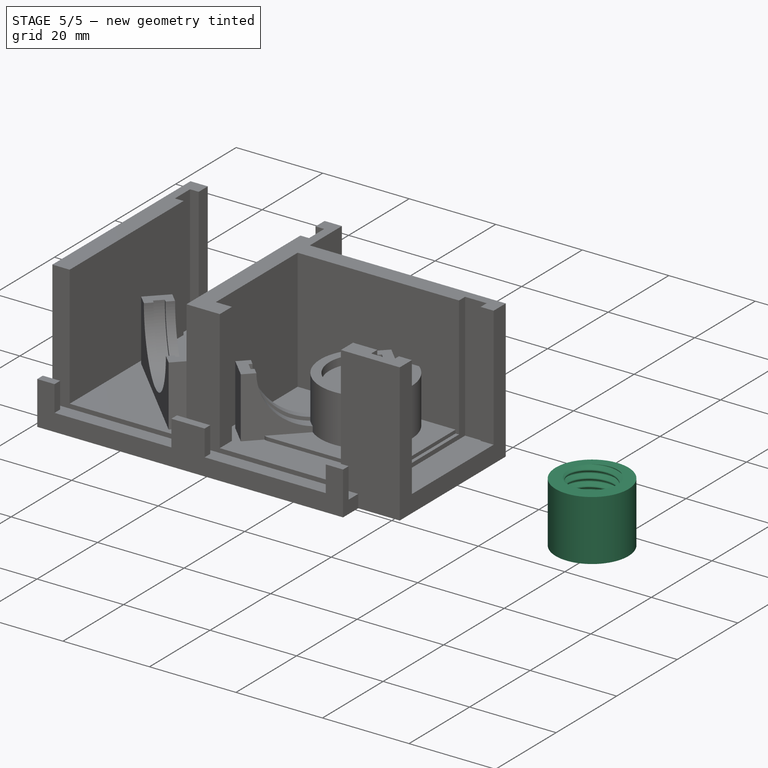
[diagram: stage 5 of 5 — iso view after this stage's code; geometry added in this stage tinted green]
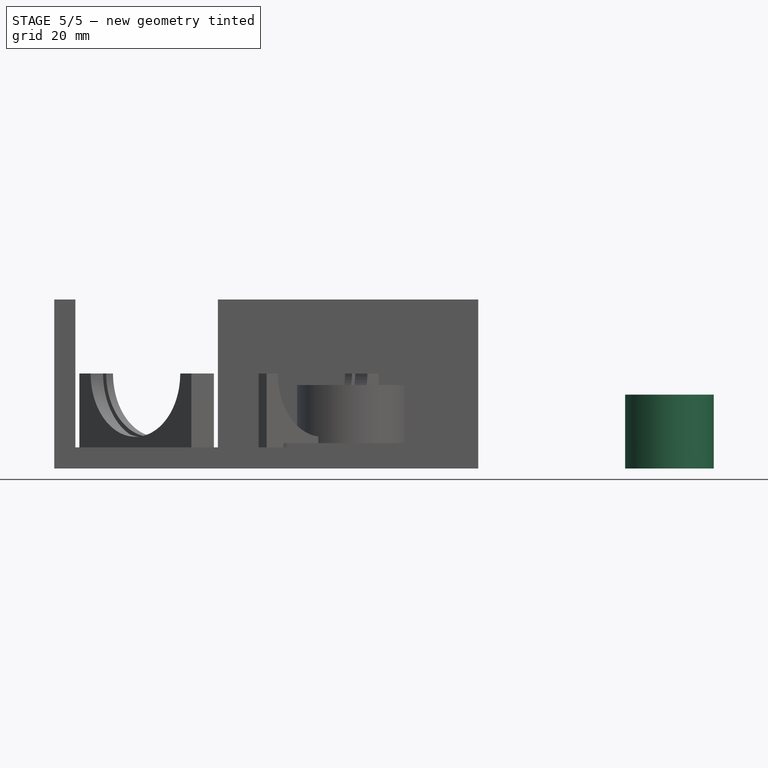
[diagram: stage 5 of 5 — front view after this stage's code; geometry added in this stage tinted green]
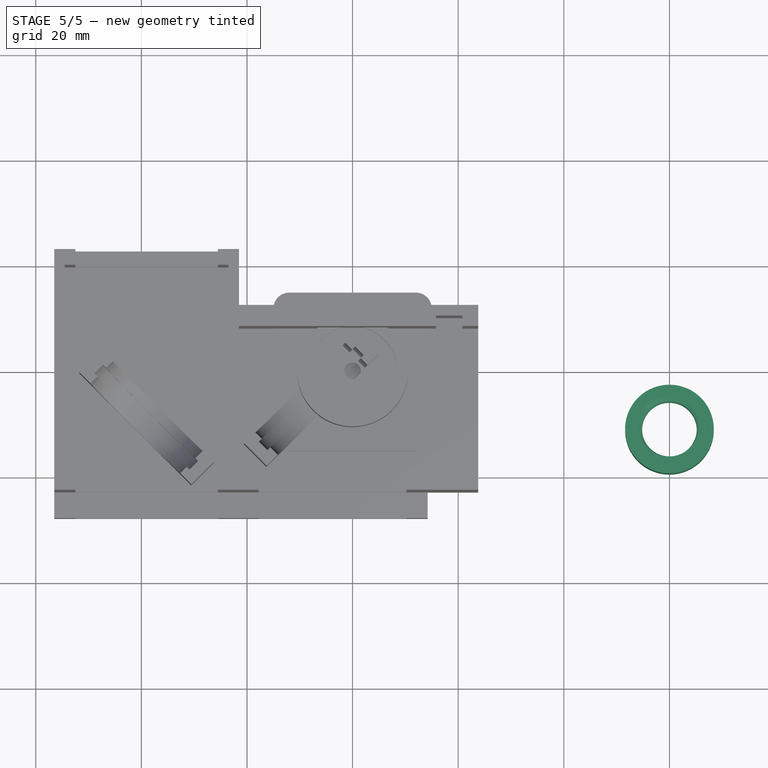
[diagram: stage 5 of 5 — top view after this stage's code; geometry added in this stage tinted green]
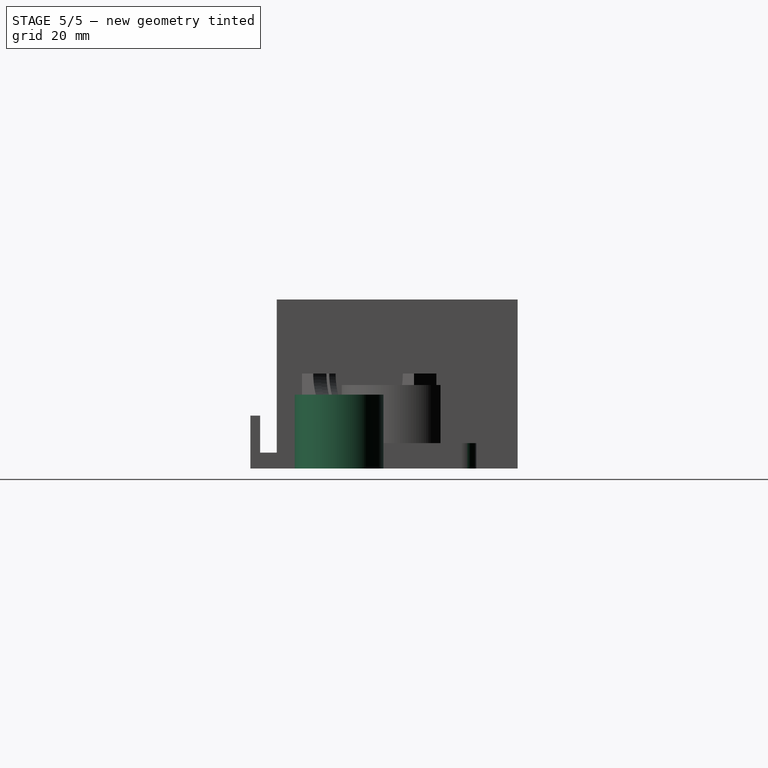
[diagram: stage 5 of 5 — right view after this stage's code; geometry added in this stage tinted green]
FEATURE [Sketcher::SketchObject] Sketch009  label="FiberFixerAMain001"
  FullyConstrained = true
  MapMode = 5
  Support = -> [XY_Plane004]
  sketch-geometry (1):
    g0: Circle CenterX=0 CenterY=0 CenterZ=0 NormalX=0 NormalY=0 NormalZ=1 AngleXU=0 Radius=8.4
  constraints (2):
    c: Coincident(g0,g-1)
    c: Radius(g0) = 8.4
FEATURE [PartDesign::Pad] Pad005  label="FiberFixerAMain"
  Direction = (0,0,1)
  Length = 14
  Length2 = 100
  Profile = -> Sketch009
  Type = 0
FEATURE [PartDesign::Body] Body004  label="FibreFixerA"
  Group = -> [Sketch009,Pad005]
  Origin = -> Origin004
  Tip = -> Pad005
FEATURE [Part::FeaturePython] ThreadedRod  label="12.5 mmx17.0-ThreadedRod"  # Fasteners workbench fastener (typed FeaturePython)
  Placement = pos=(0,0,16) rot=(0,0,1;0rad)
  diameter = 27
  diameterCustom = 12.5
  invert = false
  length = 17
  matchOuter = false
  offset = 0
  pitchCustom = 1.75
  thread = true
FEATURE [Part::Cut] Cut  label="FibreFixer"
  Base = -> Body004
  Placement = pos=(60,-11,0) rot=(0,0,1;0rad)
  Tool = -> ThreadedRod
FEATURE [Sketcher::SketchObject] Sketch008  label="FibreFixerHoles001"
  FullyConstrained = true
  MapMode = 5
  Placement = pos=(0,0,15.8) rot=(0,0,1;0rad)
  Support = -> [Pad004]
  sketch-geometry (1):
    g0: Circle CenterX=0 CenterY=0 CenterZ=0 NormalX=0 NormalY=0 NormalZ=1 AngleXU=0 Radius=8.4
  constraints (2):
    c: Radius(g0) = 8.4
    c: Coincident(g0,g-1)
FEATURE [PartDesign::Pocket] Pocket003  label="FibreFixerHoles"
  BaseFeature = -> Pad004
  Direction = (1,1,1)
  Length = 12
  Length2 = 100
  Profile = -> Sketch008
  Type = 0
FEATURE [Sketcher::SketchObject] Sketch011  label="FiberHole001"
  FullyConstrained = true
  MapMode = 5
  Placement = pos=(0,0,3.8) rot=(0,0,1;0rad)
  Support = -> [Pocket003]
  sketch-geometry (1):
    g0: Circle CenterX=0 CenterY=0 CenterZ=0 NormalX=0 NormalY=0 NormalZ=1 AngleXU=0 Radius=6.5
  constraints (2):
    c: Radius(g0) = 6.5
    c: Coincident(g-1,g0)
FEATURE [PartDesign::Pocket] Pocket004  label="FiberHole"
  BaseFeature = -> Pocket003
  Direction = (1,1,1)
  Length = 5
  Length2 = 100
  Profile = -> Sketch011
  Type = 1
FEATURE [PartDesign::Fillet] Fillet002
  Base = -> Pocket004 [Edge8,Edge5,Edge2,Edge1]
  BaseFeature = -> Pocket004
  Radius = 3
  SupportTransform = false
  UseAllEdges = false
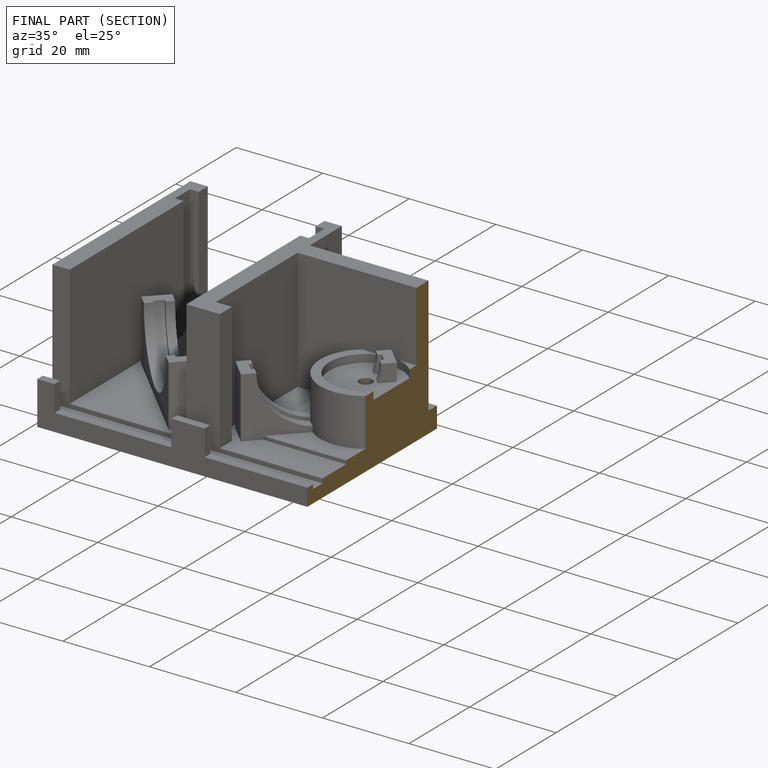
[diagram: finished part — half-section view (interior)]
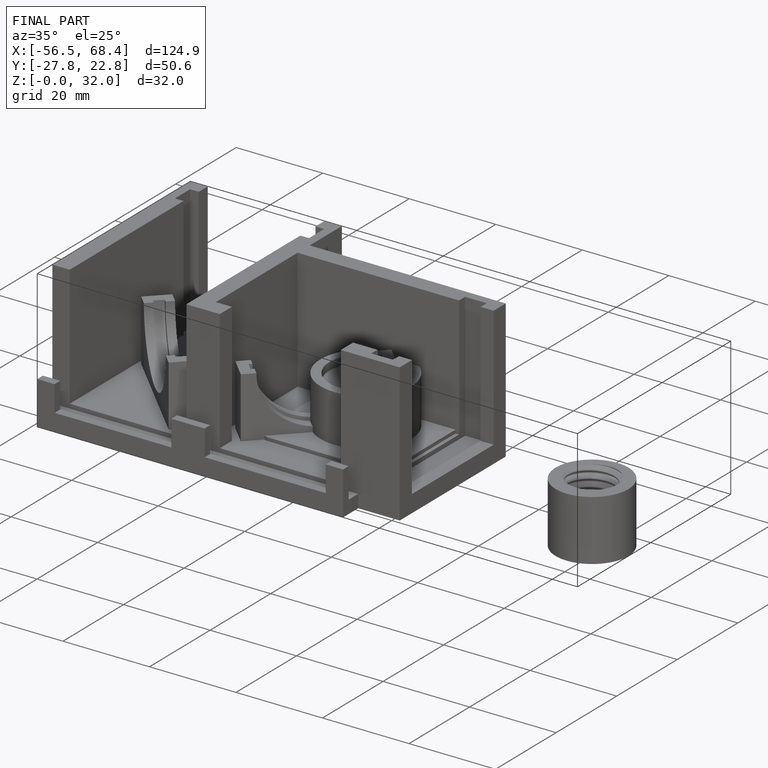
[diagram: finished part — iso view with bounding-box wireframe]
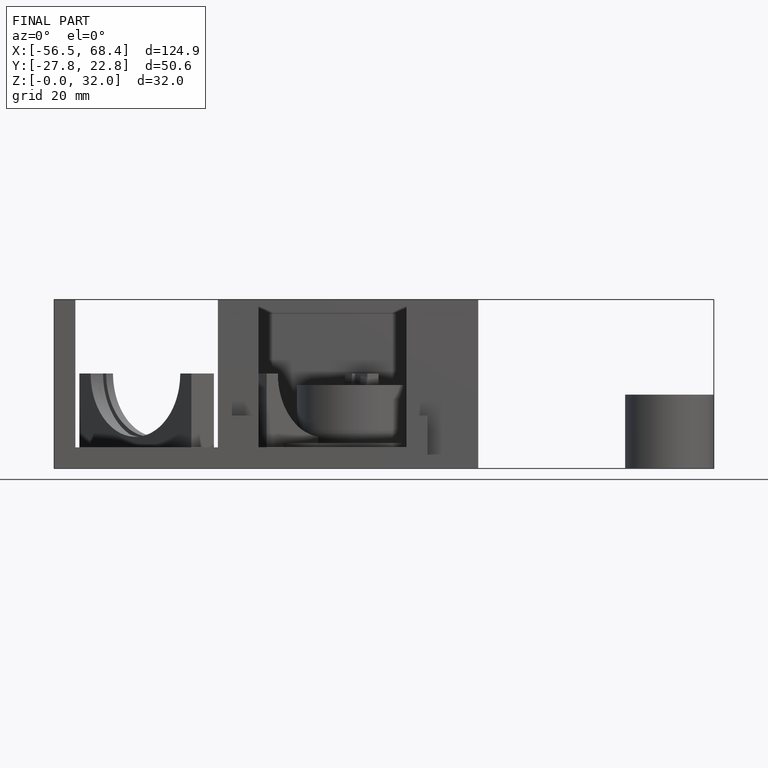
[diagram: finished part — front view with bounding-box wireframe]
